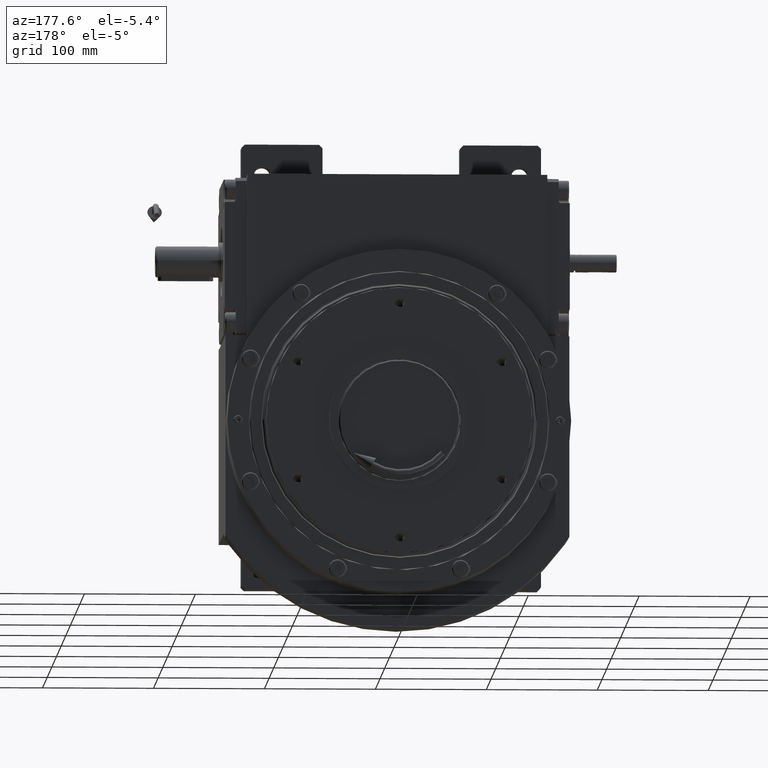
[diagram: clean part render]
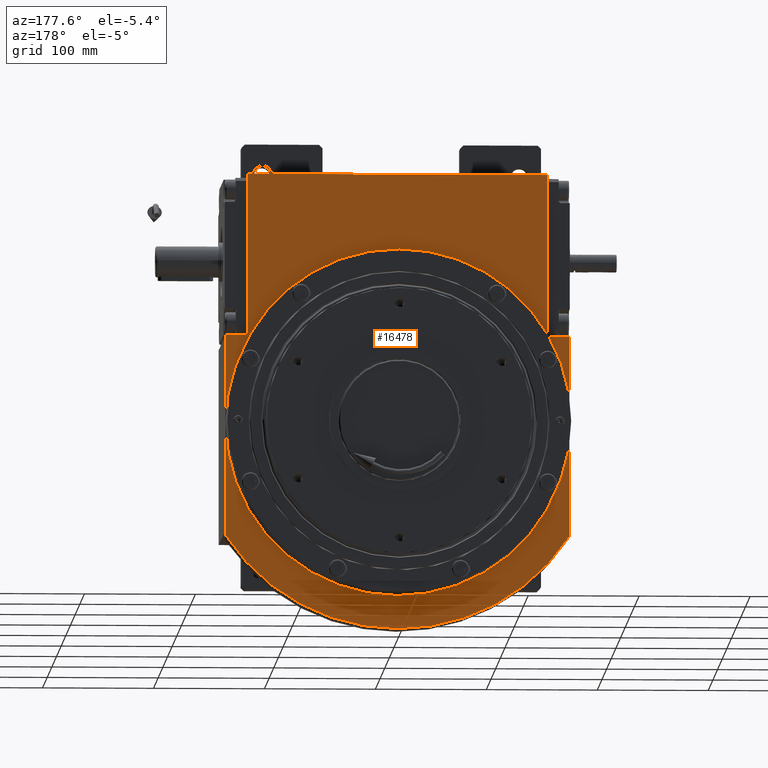
[diagram: same view with one face highlighted and labeled with its STEP entity id]
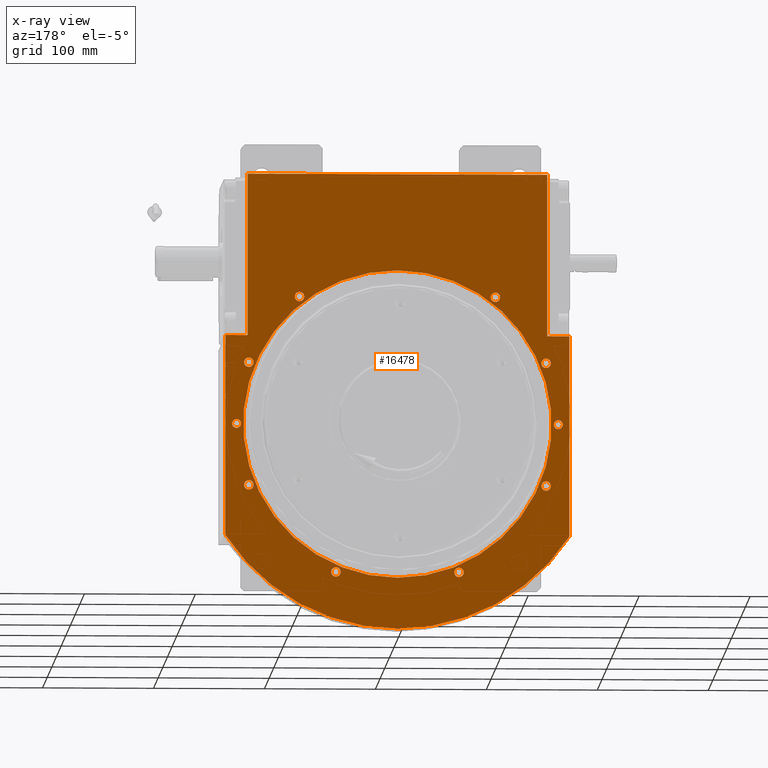
[diagram: x-ray of the same camera — body ghosted, the highlighted face saturated]
A machine part, auxiliary view. The second image highlights one B-rep face of the part: STEP entity #16478.
The next image is the same camera in x-ray: the body ghosted, the highlighted face saturated — about 0% of this face is hidden behind the body in this view.
In plain terms, the highlighted planar face has unit normal (0, 1, 0).
Its self-contained STEP definition (entity closure, byte-faithful):
#354 = ORIENTED_EDGE ( 'NONE', *, *, #51046, .F. ) ;
#375 = EDGE_CURVE ( 'NONE', #46065, #13490, #62210, .T. ) ;
#533 = ORIENTED_EDGE ( 'NONE', *, *, #27524, .F. ) ;
#682 = ORIENTED_EDGE ( 'NONE', *, *, #37141, .F. ) ;
#689 = CIRCLE ( 'NONE', #54155, 4.250000000000003553 ) ;
#1236 = ORIENTED_EDGE ( 'NONE', *, *, #26031, .F. ) ;
#1325 = AXIS2_PLACEMENT_3D ( 'NONE', #37070, #32524, #16835 ) ;
#1641 = EDGE_CURVE ( 'NONE', #13490, #46065, #26063, .T. ) ;
#1741 = ORIENTED_EDGE ( 'NONE', *, *, #1641, .F. ) ;
#1803 = ORIENTED_EDGE ( 'NONE', *, *, #38338, .T. ) ;
#2587 = AXIS2_PLACEMENT_3D ( 'NONE', #58784, #27084, #43106 ) ;
#2631 = CARTESIAN_POINT ( 'NONE',  ( 145.0000000000000000, 75.00000000000000000, 3.999999999999992450 ) ) ;
#2659 = LINE ( 'NONE', #13135, #6205 ) ;
#2983 = CARTESIAN_POINT ( 'NONE',  ( 133.9625322141366155, 75.00000000000000000, 55.48909769293800309 ) ) ;
#3063 = ORIENTED_EDGE ( 'NONE', *, *, #22183, .F. ) ;
#4351 = CARTESIAN_POINT ( 'NONE',  ( 145.0000000000000000, 75.00000000000000000, 0.000000000000000000 ) ) ;
#4676 = VECTOR ( 'NONE', #65147, 1000.000000000000000 ) ;
#5073 = ORIENTED_EDGE ( 'NONE', *, *, #34885, .F. ) ;
#5457 = AXIS2_PLACEMENT_3D ( 'NONE', #58483, #58824, #32371 ) ;
#5610 = VERTEX_POINT ( 'NONE', #31285 ) ;
#6205 = VECTOR ( 'NONE', #29165, 1000.000000000000000 ) ;
#6625 = ORIENTED_EDGE ( 'NONE', *, *, #43969, .T. ) ;
#6667 = CARTESIAN_POINT ( 'NONE',  ( -155.0000000000000000, 75.00000000000000000, -100.9950493836208096 ) ) ;
#7247 = EDGE_CURVE ( 'NONE', #34977, #30724, #67867, .T. ) ;
#7258 = VECTOR ( 'NONE', #66326, 1000.000000000000000 ) ;
#7576 = VERTEX_POINT ( 'NONE', #68177 ) ;
#7582 = AXIS2_PLACEMENT_3D ( 'NONE', #68000, #63111, #26187 ) ;
#7592 = DIRECTION ( 'NONE',  ( 0.000000000000000000, 1.000000000000000000, 0.000000000000000000 ) ) ;
#7664 = LINE ( 'NONE', #54375, #4676 ) ;
#7721 = FACE_BOUND ( 'NONE', #60383, .T. ) ;
#7893 = VERTEX_POINT ( 'NONE', #38896 ) ;
#8686 = CARTESIAN_POINT ( 'NONE',  ( 129.7125322141366155, 75.00000000000000000, -55.48909769293800309 ) ) ;
#9077 = DIRECTION ( 'NONE',  ( 0.000000000000000000, 1.000000000000000000, 0.000000000000000000 ) ) ;
#9128 = VERTEX_POINT ( 'NONE', #2631 ) ;
#9323 = EDGE_LOOP ( 'NONE', ( #682, #40221 ) ) ;
#9481 = CARTESIAN_POINT ( 'NONE',  ( 51.23909769293799599, 75.00000000000000000, -133.9625322141366155 ) ) ;
#10025 = DIRECTION ( 'NONE',  ( 0.000000000000000000, 1.000000000000000000, 0.000000000000000000 ) ) ;
#10268 = CARTESIAN_POINT ( 'NONE',  ( -133.9625322141366155, 75.00000000000000000, 55.48909769293800309 ) ) ;
#10293 = EDGE_CURVE ( 'NONE', #59456, #46542, #46691, .T. ) ;
#10421 = DIRECTION ( 'NONE',  ( 0.000000000000000000, 1.000000000000000000, 0.000000000000000000 ) ) ;
#10613 = DIRECTION ( 'NONE',  ( -1.000000000000000000, 0.000000000000000000, -1.632680918566405215E-15 ) ) ;
#11439 = ORIENTED_EDGE ( 'NONE', *, *, #10293, .F. ) ;
#11602 = AXIS2_PLACEMENT_3D ( 'NONE', #50094, #7592, #23625 ) ;
#11609 = DIRECTION ( 'NONE',  ( 1.000000000000000000, 0.000000000000000000, -6.530723674265620862E-15 ) ) ;
#11684 = EDGE_LOOP ( 'NONE', ( #26512, #533 ) ) ;
#11808 = VERTEX_POINT ( 'NONE', #6667 ) ;
#12054 = EDGE_LOOP ( 'NONE', ( #63157, #47265 ) ) ;
#12064 = VERTEX_POINT ( 'NONE', #36939 ) ;
#12542 = CIRCLE ( 'NONE', #58167, 4.250000000000003553 ) ;
#12646 = CIRCLE ( 'NONE', #62660, 3.999999999999992450 ) ;
#12778 = CARTESIAN_POINT ( 'NONE',  ( -145.0000000000000000, 75.00000000000000000, 3.999999999999992450 ) ) ;
#12998 = CARTESIAN_POINT ( 'NONE',  ( -135.0000000000000000, 75.00000000000000000, 226.0000000000000000 ) ) ;
#13113 = AXIS2_PLACEMENT_3D ( 'NONE', #44808, #23916, #14141 ) ;
#13135 = CARTESIAN_POINT ( 'NONE',  ( -155.0000000000000000, 75.00000000000000000, -100.9950493836208096 ) ) ;
#13241 = AXIS2_PLACEMENT_3D ( 'NONE', #15546, #62583, #35804 ) ;
#13490 = VERTEX_POINT ( 'NONE', #47717 ) ;
#13621 = DIRECTION ( 'NONE',  ( 1.000000000000000000, 0.000000000000000000, -6.530723674265620862E-15 ) ) ;
#13988 = FACE_BOUND ( 'NONE', #20196, .T. ) ;
#14141 = DIRECTION ( 'NONE',  ( -1.000000000000000000, 0.000000000000000000, -1.632680918566405215E-15 ) ) ;
#14276 = CARTESIAN_POINT ( 'NONE',  ( 135.0000000000000000, 75.00000000000000000, 80.00000000000000000 ) ) ;
#14331 = FACE_BOUND ( 'NONE', #16375, .T. ) ;
#14458 = AXIS2_PLACEMENT_3D ( 'NONE', #38105, #54468, #24055 ) ;
#14765 = CARTESIAN_POINT ( 'NONE',  ( 155.0000000000000000, 75.00000000000000000, -100.9950493836208096 ) ) ;
#15546 = CARTESIAN_POINT ( 'NONE',  ( 0.000000000000000000, 75.00000000000000000, -6.992960125521008625E-15 ) ) ;
#16076 = ORIENTED_EDGE ( 'NONE', *, *, #27936, .T. ) ;
#16284 = CARTESIAN_POINT ( 'NONE',  ( -129.7125322141366155, 75.00000000000000000, -55.48909769293800309 ) ) ;
#16375 = EDGE_LOOP ( 'NONE', ( #66956, #1741 ) ) ;
#16478 = ADVANCED_FACE ( 'NONE', ( #14331, #24101, #13988, #66585, #18873, #40122, #66242, #61367, #7721, #35258, #67281, #28987 ), #29679, .T. ) ;
#16835 = DIRECTION ( 'NONE',  ( 1.000000000000000000, 0.000000000000000000, 1.632680918566405215E-15 ) ) ;
#16925 = EDGE_CURVE ( 'NONE', #12064, #7893, #67746, .T. ) ;
#17244 = CARTESIAN_POINT ( 'NONE',  ( -129.7125322141366155, 75.00000000000000000, 55.48909769293800309 ) ) ;
#17788 = DIRECTION ( 'NONE',  ( 0.000000000000000000, 1.000000000000000000, 0.000000000000000000 ) ) ;
#18533 = DIRECTION ( 'NONE',  ( 1.000000000000000000, 0.000000000000000000, 0.000000000000000000 ) ) ;
#18803 = DIRECTION ( 'NONE',  ( 0.000000000000000000, 0.000000000000000000, -1.000000000000000000 ) ) ;
#18873 = FACE_BOUND ( 'NONE', #9323, .T. ) ;
#18951 = AXIS2_PLACEMENT_3D ( 'NONE', #30327, #9077, #51584 ) ;
#19037 = DIRECTION ( 'NONE',  ( -1.000000000000000000, 0.000000000000000000, -1.632680918566405215E-15 ) ) ;
#19412 = ORIENTED_EDGE ( 'NONE', *, *, #19759, .F. ) ;
#19491 = CARTESIAN_POINT ( 'NONE',  ( -145.0000000000000000, 75.00000000000000000, 0.000000000000000000 ) ) ;
#19759 = EDGE_CURVE ( 'NONE', #30518, #49854, #31823, .T. ) ;
#19839 = EDGE_CURVE ( 'NONE', #42758, #9128, #21805, .T. ) ;
#19871 = CIRCLE ( 'NONE', #7582, 4.250000000000003553 ) ;
#20193 = LINE ( 'NONE', #41798, #49358 ) ;
#20196 = EDGE_LOOP ( 'NONE', ( #46548, #11439 ) ) ;
#20418 = AXIS2_PLACEMENT_3D ( 'NONE', #51253, #62033, #13621 ) ;
#20546 = DIRECTION ( 'NONE',  ( 0.000000000000000000, 0.000000000000000000, 1.000000000000000000 ) ) ;
#21805 = CIRCLE ( 'NONE', #45674, 3.999999999999992450 ) ;
#21813 = ORIENTED_EDGE ( 'NONE', *, *, #26410, .T. ) ;
#22108 = ORIENTED_EDGE ( 'NONE', *, *, #19839, .F. ) ;
#22183 = EDGE_CURVE ( 'NONE', #64198, #60252, #43615, .T. ) ;
#22430 = VERTEX_POINT ( 'NONE', #66954 ) ;
#22478 = CARTESIAN_POINT ( 'NONE',  ( -138.2125322141365871, 75.00000000000000000, 55.48909769293800309 ) ) ;
#23625 = DIRECTION ( 'NONE',  ( 0.000000000000000000, 0.000000000000000000, 1.000000000000000000 ) ) ;
#23703 = ORIENTED_EDGE ( 'NONE', *, *, #24544, .F. ) ;
#23916 = DIRECTION ( 'NONE',  ( 0.000000000000000000, 1.000000000000000000, 0.000000000000000000 ) ) ;
#24055 = DIRECTION ( 'NONE',  ( 1.000000000000000000, 0.000000000000000000, 1.632680918566405215E-15 ) ) ;
#24101 = FACE_BOUND ( 'NONE', #32661, .T. ) ;
#24448 = DIRECTION ( 'NONE',  ( 1.000000000000000000, 0.000000000000000000, 0.000000000000000000 ) ) ;
#24544 = EDGE_CURVE ( 'NONE', #7893, #12064, #38156, .T. ) ;
#24775 = CARTESIAN_POINT ( 'NONE',  ( -145.0000000000000000, 75.00000000000000000, 0.000000000000000000 ) ) ;
#25036 = EDGE_CURVE ( 'NONE', #46542, #59456, #12646, .T. ) ;
#25065 = EDGE_LOOP ( 'NONE', ( #33443, #1236 ) ) ;
#26031 = EDGE_CURVE ( 'NONE', #45154, #5610, #57196, .T. ) ;
#26062 = AXIS2_PLACEMENT_3D ( 'NONE', #62403, #30367, #24448 ) ;
#26063 = CIRCLE ( 'NONE', #11602, 139.0000000000000000 ) ;
#26187 = DIRECTION ( 'NONE',  ( 1.000000000000000000, 0.000000000000000000, 1.632680918566405215E-15 ) ) ;
#26410 = EDGE_CURVE ( 'NONE', #68095, #11808, #31067, .T. ) ;
#26501 = EDGE_CURVE ( 'NONE', #50541, #68095, #33064, .T. ) ;
#26512 = ORIENTED_EDGE ( 'NONE', *, *, #45460, .F. ) ;
#27084 = DIRECTION ( 'NONE',  ( 0.000000000000000000, 1.000000000000000000, 0.000000000000000000 ) ) ;
#27487 = CARTESIAN_POINT ( 'NONE',  ( 135.0000000000000000, 75.00000000000000000, 80.00000000000000000 ) ) ;
#27524 = EDGE_CURVE ( 'NONE', #51785, #63613, #63421, .T. ) ;
#27567 = CIRCLE ( 'NONE', #57593, 4.250000000000003553 ) ;
#27936 = EDGE_CURVE ( 'NONE', #31615, #50541, #55334, .T. ) ;
#28430 = EDGE_LOOP ( 'NONE', ( #58329, #23703 ) ) ;
#28486 = AXIS2_PLACEMENT_3D ( 'NONE', #2983, #30174, #19037 ) ;
#28686 = CARTESIAN_POINT ( 'NONE',  ( 135.0000000000000000, 75.00000000000000000, 226.0000000000000000 ) ) ;
#28987 = FACE_OUTER_BOUND ( 'NONE', #55424, .T. ) ;
#29165 = DIRECTION ( 'NONE',  ( 0.000000000000000000, 0.000000000000000000, 1.000000000000000000 ) ) ;
#29679 = PLANE ( 'NONE',  #41062 ) ;
#30174 = DIRECTION ( 'NONE',  ( 0.000000000000000000, 1.000000000000000000, 0.000000000000000000 ) ) ;
#30327 = CARTESIAN_POINT ( 'NONE',  ( 55.48909769293800309, 75.00000000000000000, -133.9625322141366155 ) ) ;
#30367 = DIRECTION ( 'NONE',  ( 0.000000000000000000, 1.000000000000000000, 0.000000000000000000 ) ) ;
#30518 = VERTEX_POINT ( 'NONE', #38169 ) ;
#30724 = VERTEX_POINT ( 'NONE', #51718 ) ;
#31067 = CIRCLE ( 'NONE', #5457, 185.0000000000000853 ) ;
#31285 = CARTESIAN_POINT ( 'NONE',  ( -138.2125322141365871, 75.00000000000000000, -55.48909769293800309 ) ) ;
#31390 = EDGE_CURVE ( 'NONE', #22430, #57356, #7664, .T. ) ;
#31596 = LINE ( 'NONE', #58397, #63473 ) ;
#31615 = VERTEX_POINT ( 'NONE', #14276 ) ;
#31686 = DIRECTION ( 'NONE',  ( -1.000000000000000000, 0.000000000000000000, 0.000000000000000000 ) ) ;
#31823 = CIRCLE ( 'NONE', #28486, 4.250000000000003553 ) ;
#31878 = DIRECTION ( 'NONE',  ( 0.000000000000000000, 1.000000000000000000, 0.000000000000000000 ) ) ;
#31941 = DIRECTION ( 'NONE',  ( 0.000000000000000000, 0.000000000000000000, -1.000000000000000000 ) ) ;
#32320 = VECTOR ( 'NONE', #38973, 1000.000000000000000 ) ;
#32371 = DIRECTION ( 'NONE',  ( 0.8378378378378376068, 0.000000000000000000, -0.5459191858574098388 ) ) ;
#32524 = DIRECTION ( 'NONE',  ( 0.000000000000000000, 1.000000000000000000, 0.000000000000000000 ) ) ;
#32661 = EDGE_LOOP ( 'NONE', ( #354, #22108 ) ) ;
#33064 = LINE ( 'NONE', #43833, #44391 ) ;
#33261 = CARTESIAN_POINT ( 'NONE',  ( 138.2125322141365871, 75.00000000000000000, 55.48909769293800309 ) ) ;
#33443 = ORIENTED_EDGE ( 'NONE', *, *, #39432, .F. ) ;
#34133 = CARTESIAN_POINT ( 'NONE',  ( 0.000000000000000000, 75.00000000000000000, 139.0000000000000000 ) ) ;
#34254 = EDGE_LOOP ( 'NONE', ( #19412, #38387 ) ) ;
#34390 = ORIENTED_EDGE ( 'NONE', *, *, #26501, .T. ) ;
#34839 = DIRECTION ( 'NONE',  ( 0.000000000000000000, 1.000000000000000000, -0.000000000000000000 ) ) ;
#34885 = EDGE_CURVE ( 'NONE', #34910, #7576, #51664, .T. ) ;
#34909 = DIRECTION ( 'NONE',  ( 0.000000000000000000, 1.000000000000000000, -0.000000000000000000 ) ) ;
#34910 = VERTEX_POINT ( 'NONE', #38440 ) ;
#34977 = VERTEX_POINT ( 'NONE', #9481 ) ;
#35258 = FACE_BOUND ( 'NONE', #25065, .T. ) ;
#35341 = LINE ( 'NONE', #56228, #7258 ) ;
#35804 = DIRECTION ( 'NONE',  ( 0.000000000000000000, 0.000000000000000000, 1.000000000000000000 ) ) ;
#36075 = VERTEX_POINT ( 'NONE', #28686 ) ;
#36525 = DIRECTION ( 'NONE',  ( 0.000000000000000000, 0.000000000000000000, 1.000000000000000000 ) ) ;
#36925 = CARTESIAN_POINT ( 'NONE',  ( 138.2125322141365871, 75.00000000000000000, -55.48909769293800309 ) ) ;
#36939 = CARTESIAN_POINT ( 'NONE',  ( -92.52040720626450820, 75.00000000000000000, 115.0362343422289939 ) ) ;
#37070 = CARTESIAN_POINT ( 'NONE',  ( 133.9625322141366155, 75.00000000000000000, -55.48909769293800309 ) ) ;
#37141 = EDGE_CURVE ( 'NONE', #67919, #37706, #40809, .T. ) ;
#37558 = ORIENTED_EDGE ( 'NONE', *, *, #46799, .F. ) ;
#37706 = VERTEX_POINT ( 'NONE', #39223 ) ;
#38092 = CARTESIAN_POINT ( 'NONE',  ( -55.48909769293800309, 75.00000000000000000, -133.9625322141366155 ) ) ;
#38105 = CARTESIAN_POINT ( 'NONE',  ( -133.9625322141366155, 75.00000000000000000, 55.48909769293800309 ) ) ;
#38156 = CIRCLE ( 'NONE', #26062, 4.250000000000003553 ) ;
#38163 = ORIENTED_EDGE ( 'NONE', *, *, #31390, .T. ) ;
#38169 = CARTESIAN_POINT ( 'NONE',  ( 129.7125322141366155, 75.00000000000000000, 55.48909769293800309 ) ) ;
#38338 = EDGE_CURVE ( 'NONE', #57356, #64044, #20193, .T. ) ;
#38387 = ORIENTED_EDGE ( 'NONE', *, *, #48896, .F. ) ;
#38440 = CARTESIAN_POINT ( 'NONE',  ( -51.23909769293799599, 75.00000000000000000, -133.9625322141366155 ) ) ;
#38896 = CARTESIAN_POINT ( 'NONE',  ( -84.02040720626449399, 75.00000000000000000, 115.0362343422289939 ) ) ;
#38973 = DIRECTION ( 'NONE',  ( 1.000000000000000000, 0.000000000000000000, 0.000000000000000000 ) ) ;
#39223 = CARTESIAN_POINT ( 'NONE',  ( 92.52040720626450820, 75.00000000000000000, 115.0362343422289939 ) ) ;
#39432 = EDGE_CURVE ( 'NONE', #5610, #45154, #12542, .T. ) ;
#39699 = CARTESIAN_POINT ( 'NONE',  ( -88.27040720626449399, 75.00000000000000000, 115.0362343422289939 ) ) ;
#40122 = FACE_BOUND ( 'NONE', #34254, .T. ) ;
#40221 = ORIENTED_EDGE ( 'NONE', *, *, #57804, .F. ) ;
#40688 = ORIENTED_EDGE ( 'NONE', *, *, #64734, .F. ) ;
#40809 = CIRCLE ( 'NONE', #51907, 4.250000000000003553 ) ;
#41062 = AXIS2_PLACEMENT_3D ( 'NONE', #51617, #56484, #18533 ) ;
#41364 = DIRECTION ( 'NONE',  ( 0.000000000000000000, 1.000000000000000000, 0.000000000000000000 ) ) ;
#41798 = CARTESIAN_POINT ( 'NONE',  ( -135.0000000000000000, 75.00000000000000000, 80.00000000000000000 ) ) ;
#41861 = EDGE_CURVE ( 'NONE', #30724, #34977, #62697, .T. ) ;
#42758 = VERTEX_POINT ( 'NONE', #47199 ) ;
#42850 = CARTESIAN_POINT ( 'NONE',  ( -135.0000000000000000, 75.00000000000000000, 80.00000000000000000 ) ) ;
#43106 = DIRECTION ( 'NONE',  ( 1.000000000000000000, 0.000000000000000000, 0.000000000000000000 ) ) ;
#43615 = CIRCLE ( 'NONE', #1325, 4.250000000000003553 ) ;
#43833 = CARTESIAN_POINT ( 'NONE',  ( 155.0000000000000000, 75.00000000000000000, 80.00000000000000000 ) ) ;
#43834 = CARTESIAN_POINT ( 'NONE',  ( 88.27040720626449399, 75.00000000000000000, 115.0362343422289939 ) ) ;
#43969 = EDGE_CURVE ( 'NONE', #64044, #36075, #35341, .T. ) ;
#44391 = VECTOR ( 'NONE', #49754, 1000.000000000000000 ) ;
#44657 = EDGE_CURVE ( 'NONE', #11808, #22430, #2659, .T. ) ;
#44808 = CARTESIAN_POINT ( 'NONE',  ( 133.9625322141366155, 75.00000000000000000, -55.48909769293800309 ) ) ;
#45154 = VERTEX_POINT ( 'NONE', #16284 ) ;
#45460 = EDGE_CURVE ( 'NONE', #63613, #51785, #689, .T. ) ;
#45674 = AXIS2_PLACEMENT_3D ( 'NONE', #4351, #45850, #56308 ) ;
#45850 = DIRECTION ( 'NONE',  ( 0.000000000000000000, 1.000000000000000000, 0.000000000000000000 ) ) ;
#45904 = CARTESIAN_POINT ( 'NONE',  ( -55.48909769293800309, 75.00000000000000000, -133.9625322141366155 ) ) ;
#46065 = VERTEX_POINT ( 'NONE', #34133 ) ;
#46542 = VERTEX_POINT ( 'NONE', #12778 ) ;
#46548 = ORIENTED_EDGE ( 'NONE', *, *, #25036, .F. ) ;
#46691 = CIRCLE ( 'NONE', #63387, 3.999999999999992450 ) ;
#46799 = EDGE_CURVE ( 'NONE', #60252, #64198, #52055, .T. ) ;
#47199 = CARTESIAN_POINT ( 'NONE',  ( 145.0000000000000000, 75.00000000000000000, -3.999999999999992450 ) ) ;
#47265 = ORIENTED_EDGE ( 'NONE', *, *, #41861, .F. ) ;
#47717 = CARTESIAN_POINT ( 'NONE',  ( 1.702259050814821084E-14, 75.00000000000000000, -139.0000000000000000 ) ) ;
#48896 = EDGE_CURVE ( 'NONE', #49854, #30518, #19871, .T. ) ;
#48939 = AXIS2_PLACEMENT_3D ( 'NONE', #67848, #10025, #36525 ) ;
#49358 = VECTOR ( 'NONE', #20546, 1000.000000000000000 ) ;
#49490 = CARTESIAN_POINT ( 'NONE',  ( -133.9625322141366155, 75.00000000000000000, -55.48909769293800309 ) ) ;
#49754 = DIRECTION ( 'NONE',  ( 3.140606279253960088E-16, 0.000000000000000000, -1.000000000000000000 ) ) ;
#49838 = DIRECTION ( 'NONE',  ( 1.000000000000000000, 0.000000000000000000, 1.632680918566405215E-15 ) ) ;
#49854 = VERTEX_POINT ( 'NONE', #33261 ) ;
#50094 = CARTESIAN_POINT ( 'NONE',  ( 0.000000000000000000, 75.00000000000000000, -6.992960125521008625E-15 ) ) ;
#50261 = ORIENTED_EDGE ( 'NONE', *, *, #54820, .T. ) ;
#50541 = VERTEX_POINT ( 'NONE', #51938 ) ;
#50574 = DIRECTION ( 'NONE',  ( 0.000000000000000000, 0.000000000000000000, -1.000000000000000000 ) ) ;
#50639 = DIRECTION ( 'NONE',  ( -1.000000000000000000, 0.000000000000000000, -1.632680918566405215E-15 ) ) ;
#50849 = DIRECTION ( 'NONE',  ( 0.000000000000000000, 1.000000000000000000, 0.000000000000000000 ) ) ;
#51046 = EDGE_CURVE ( 'NONE', #9128, #42758, #52289, .T. ) ;
#51253 = CARTESIAN_POINT ( 'NONE',  ( 55.48909769293800309, 75.00000000000000000, -133.9625322141366155 ) ) ;
#51584 = DIRECTION ( 'NONE',  ( -1.000000000000000000, 0.000000000000000000, 6.530723674265620862E-15 ) ) ;
#51617 = CARTESIAN_POINT ( 'NONE',  ( 0.000000000000000000, 75.00000000000000000, 0.000000000000000000 ) ) ;
#51664 = CIRCLE ( 'NONE', #58301, 4.250000000000003553 ) ;
#51718 = CARTESIAN_POINT ( 'NONE',  ( 59.73909769293799599, 75.00000000000000000, -133.9625322141366155 ) ) ;
#51785 = VERTEX_POINT ( 'NONE', #17244 ) ;
#51907 = AXIS2_PLACEMENT_3D ( 'NONE', #43834, #10421, #31686 ) ;
#51938 = CARTESIAN_POINT ( 'NONE',  ( 155.0000000000000000, 75.00000000000000000, 80.00000000000000000 ) ) ;
#52055 = CIRCLE ( 'NONE', #13113, 4.250000000000003553 ) ;
#52289 = CIRCLE ( 'NONE', #48939, 3.999999999999992450 ) ;
#53331 = ORIENTED_EDGE ( 'NONE', *, *, #44657, .T. ) ;
#53502 = CARTESIAN_POINT ( 'NONE',  ( -145.0000000000000000, 75.00000000000000000, -3.999999999999992450 ) ) ;
#53802 = CIRCLE ( 'NONE', #2587, 4.250000000000003553 ) ;
#54155 = AXIS2_PLACEMENT_3D ( 'NONE', #10268, #31878, #10613 ) ;
#54190 = CARTESIAN_POINT ( 'NONE',  ( 84.02040720626449399, 75.00000000000000000, 115.0362343422289939 ) ) ;
#54375 = CARTESIAN_POINT ( 'NONE',  ( -155.0000000000000000, 75.00000000000000000, 80.00000000000000000 ) ) ;
#54455 = DIRECTION ( 'NONE',  ( 0.000000000000000000, 1.000000000000000000, 0.000000000000000000 ) ) ;
#54468 = DIRECTION ( 'NONE',  ( 0.000000000000000000, 1.000000000000000000, 0.000000000000000000 ) ) ;
#54820 = EDGE_CURVE ( 'NONE', #36075, #31615, #31596, .T. ) ;
#55334 = LINE ( 'NONE', #27487, #32320 ) ;
#55424 = EDGE_LOOP ( 'NONE', ( #16076, #34390, #21813, #53331, #38163, #1803, #6625, #50261 ) ) ;
#56228 = CARTESIAN_POINT ( 'NONE',  ( -135.0000000000000000, 75.00000000000000000, 226.0000000000000000 ) ) ;
#56308 = DIRECTION ( 'NONE',  ( 0.000000000000000000, 0.000000000000000000, 1.000000000000000000 ) ) ;
#56484 = DIRECTION ( 'NONE',  ( -0.000000000000000000, 1.000000000000000000, 0.000000000000000000 ) ) ;
#57196 = CIRCLE ( 'NONE', #66098, 4.250000000000003553 ) ;
#57356 = VERTEX_POINT ( 'NONE', #42850 ) ;
#57593 = AXIS2_PLACEMENT_3D ( 'NONE', #45904, #41364, #67140 ) ;
#57804 = EDGE_CURVE ( 'NONE', #37706, #67919, #53802, .T. ) ;
#58167 = AXIS2_PLACEMENT_3D ( 'NONE', #60738, #66291, #50639 ) ;
#58301 = AXIS2_PLACEMENT_3D ( 'NONE', #38092, #54455, #11609 ) ;
#58329 = ORIENTED_EDGE ( 'NONE', *, *, #16925, .F. ) ;
#58397 = CARTESIAN_POINT ( 'NONE',  ( 135.0000000000000000, 75.00000000000000000, 226.0000000000000000 ) ) ;
#58483 = CARTESIAN_POINT ( 'NONE',  ( -1.421085471520200056E-14, 75.00000000000000000, 0.000000000000000000 ) ) ;
#58784 = CARTESIAN_POINT ( 'NONE',  ( 88.27040720626449399, 75.00000000000000000, 115.0362343422289939 ) ) ;
#58824 = DIRECTION ( 'NONE',  ( 0.000000000000000000, 1.000000000000000000, 0.000000000000000000 ) ) ;
#59456 = VERTEX_POINT ( 'NONE', #53502 ) ;
#60252 = VERTEX_POINT ( 'NONE', #8686 ) ;
#60383 = EDGE_LOOP ( 'NONE', ( #40688, #5073 ) ) ;
#60738 = CARTESIAN_POINT ( 'NONE',  ( -133.9625322141366155, 75.00000000000000000, -55.48909769293800309 ) ) ;
#61367 = FACE_BOUND ( 'NONE', #12054, .T. ) ;
#61628 = DIRECTION ( 'NONE',  ( -1.000000000000000000, 0.000000000000000000, 0.000000000000000000 ) ) ;
#62033 = DIRECTION ( 'NONE',  ( 0.000000000000000000, 1.000000000000000000, 0.000000000000000000 ) ) ;
#62210 = CIRCLE ( 'NONE', #13241, 139.0000000000000000 ) ;
#62236 = AXIS2_PLACEMENT_3D ( 'NONE', #39699, #50849, #61628 ) ;
#62403 = CARTESIAN_POINT ( 'NONE',  ( -88.27040720626449399, 75.00000000000000000, 115.0362343422289939 ) ) ;
#62583 = DIRECTION ( 'NONE',  ( 0.000000000000000000, 1.000000000000000000, 0.000000000000000000 ) ) ;
#62660 = AXIS2_PLACEMENT_3D ( 'NONE', #19491, #34839, #18803 ) ;
#62697 = CIRCLE ( 'NONE', #20418, 4.250000000000003553 ) ;
#63111 = DIRECTION ( 'NONE',  ( 0.000000000000000000, 1.000000000000000000, 0.000000000000000000 ) ) ;
#63157 = ORIENTED_EDGE ( 'NONE', *, *, #7247, .F. ) ;
#63387 = AXIS2_PLACEMENT_3D ( 'NONE', #24775, #34909, #50574 ) ;
#63421 = CIRCLE ( 'NONE', #14458, 4.250000000000003553 ) ;
#63473 = VECTOR ( 'NONE', #31941, 1000.000000000000000 ) ;
#63613 = VERTEX_POINT ( 'NONE', #22478 ) ;
#64044 = VERTEX_POINT ( 'NONE', #12998 ) ;
#64198 = VERTEX_POINT ( 'NONE', #36925 ) ;
#64734 = EDGE_CURVE ( 'NONE', #7576, #34910, #27567, .T. ) ;
#65147 = DIRECTION ( 'NONE',  ( 1.000000000000000000, 0.000000000000000000, 0.000000000000000000 ) ) ;
#66098 = AXIS2_PLACEMENT_3D ( 'NONE', #49490, #17788, #49838 ) ;
#66242 = FACE_BOUND ( 'NONE', #68926, .T. ) ;
#66291 = DIRECTION ( 'NONE',  ( 0.000000000000000000, 1.000000000000000000, 0.000000000000000000 ) ) ;
#66326 = DIRECTION ( 'NONE',  ( 1.000000000000000000, 0.000000000000000000, 0.000000000000000000 ) ) ;
#66585 = FACE_BOUND ( 'NONE', #28430, .T. ) ;
#66954 = CARTESIAN_POINT ( 'NONE',  ( -155.0000000000000000, 75.00000000000000000, 80.00000000000000000 ) ) ;
#66956 = ORIENTED_EDGE ( 'NONE', *, *, #375, .F. ) ;
#67140 = DIRECTION ( 'NONE',  ( -1.000000000000000000, 0.000000000000000000, 6.530723674265620862E-15 ) ) ;
#67281 = FACE_BOUND ( 'NONE', #11684, .T. ) ;
#67746 = CIRCLE ( 'NONE', #62236, 4.250000000000003553 ) ;
#67848 = CARTESIAN_POINT ( 'NONE',  ( 145.0000000000000000, 75.00000000000000000, 0.000000000000000000 ) ) ;
#67867 = CIRCLE ( 'NONE', #18951, 4.250000000000003553 ) ;
#67919 = VERTEX_POINT ( 'NONE', #54190 ) ;
#68000 = CARTESIAN_POINT ( 'NONE',  ( 133.9625322141366155, 75.00000000000000000, 55.48909769293800309 ) ) ;
#68095 = VERTEX_POINT ( 'NONE', #14765 ) ;
#68177 = CARTESIAN_POINT ( 'NONE',  ( -59.73909769293799599, 75.00000000000000000, -133.9625322141366155 ) ) ;
#68926 = EDGE_LOOP ( 'NONE', ( #37558, #3063 ) ) ;